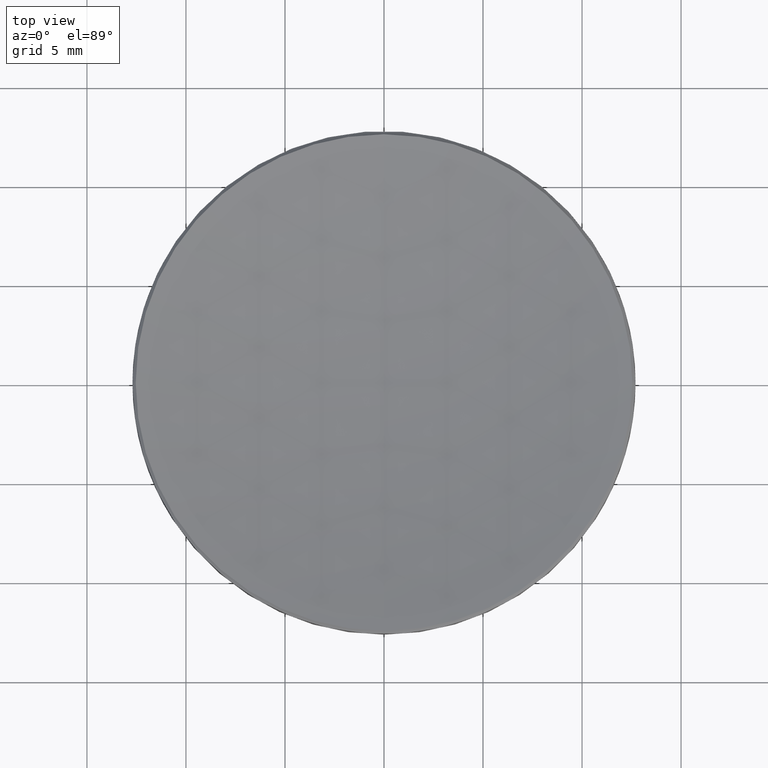
[diagram: clean part render]
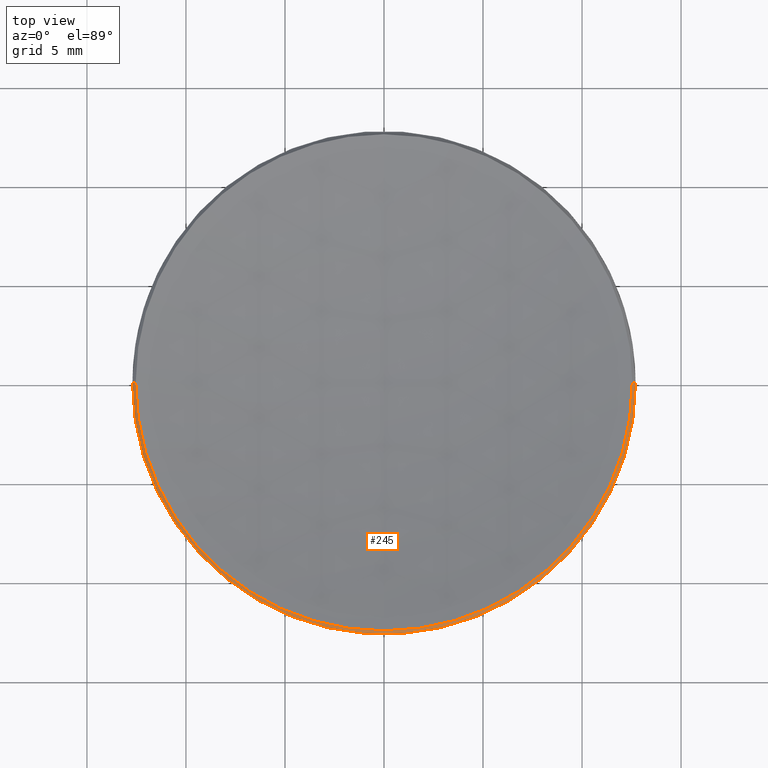
[diagram: same view with one face highlighted and labeled with its STEP entity id]
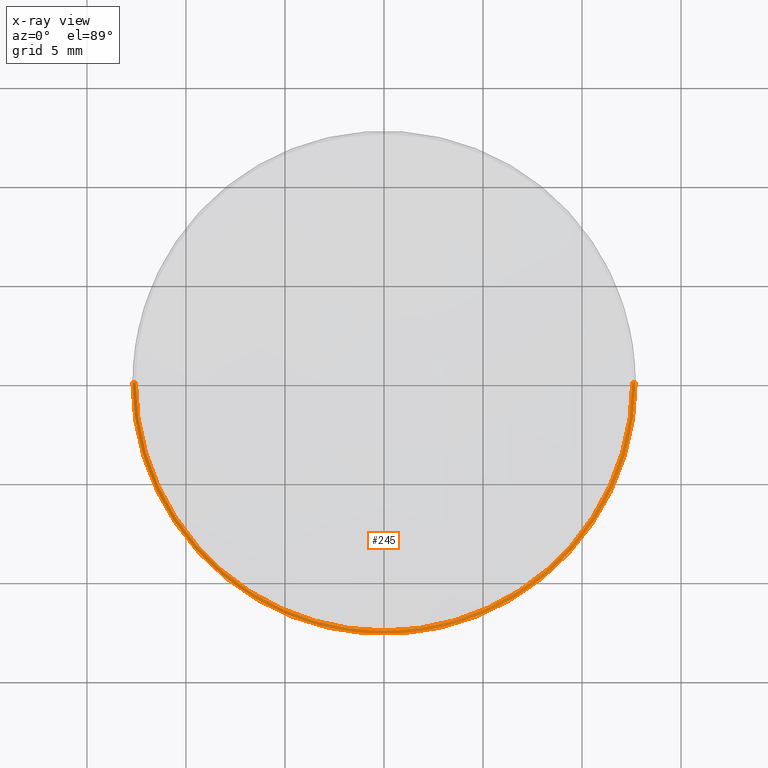
[diagram: x-ray of the same camera — body ghosted, the highlighted face saturated]
A machine part, top view. The second image highlights one B-rep face of the part: STEP entity #245.
The next image is the same camera in x-ray: the body ghosted, the highlighted face saturated — about 0% of this face is hidden behind the body in this view.
In plain terms, the highlighted conical surface has half-angle 45 deg.
Its self-contained STEP definition (entity closure, byte-faithful):
#2 = EDGE_CURVE ( 'NONE', #99, #150, #180, .T. ) ;
#11 = VERTEX_POINT ( 'NONE', #165 ) ;
#12 = LINE ( 'NONE', #211, #276 ) ;
#17 = ORIENTED_EDGE ( 'NONE', *, *, #2, .F. ) ;
#19 = CARTESIAN_POINT ( 'NONE',  ( 0.000000000000000000, 0.000000000000000000, 11.79999999999999716 ) ) ;
#20 = DIRECTION ( 'NONE',  ( -0.000000000000000000, -0.000000000000000000, 1.000000000000000000 ) ) ;
#31 = AXIS2_PLACEMENT_3D ( 'NONE', #19, #138, #223 ) ;
#33 = CARTESIAN_POINT ( 'NONE',  ( -12.69999999999999929, 0.000000000000000000, 11.79999999999999716 ) ) ;
#39 = CARTESIAN_POINT ( 'NONE',  ( 0.000000000000000000, 0.000000000000000000, 11.96196640381658227 ) ) ;
#57 = VERTEX_POINT ( 'NONE', #250 ) ;
#58 = FACE_OUTER_BOUND ( 'NONE', #169, .T. ) ;
#64 = ORIENTED_EDGE ( 'NONE', *, *, #131, .T. ) ;
#68 = CIRCLE ( 'NONE', #220, 12.53803359618341418 ) ;
#77 = CARTESIAN_POINT ( 'NONE',  ( 12.69999999999999929, 1.555301434917138433E-15, 11.79999999999999716 ) ) ;
#84 = DIRECTION ( 'NONE',  ( 0.7071067811865513475, 8.659560562354980929E-17, -0.7071067811865437980 ) ) ;
#87 = VERTEX_POINT ( 'NONE', #266 ) ;
#91 = EDGE_CURVE ( 'NONE', #11, #87, #115, .T. ) ;
#95 = DIRECTION ( 'NONE',  ( -0.7071067811865513475, 0.000000000000000000, -0.7071067811865437980 ) ) ;
#96 = VECTOR ( 'NONE', #84, 1000.000000000000000 ) ;
#99 = VERTEX_POINT ( 'NONE', #77 ) ;
#102 = DIRECTION ( 'NONE',  ( 1.000000000000000000, 0.000000000000000000, 0.000000000000000000 ) ) ;
#104 = ORIENTED_EDGE ( 'NONE', *, *, #179, .F. ) ;
#111 = AXIS2_PLACEMENT_3D ( 'NONE', #112, #203, #229 ) ;
#112 = CARTESIAN_POINT ( 'NONE',  ( 0.000000000000000000, 0.000000000000000000, 11.96196640381658227 ) ) ;
#115 = CIRCLE ( 'NONE', #111, 12.53803359618341418 ) ;
#124 = DIRECTION ( 'NONE',  ( 0.000000000000000000, 0.000000000000000000, -1.000000000000000000 ) ) ;
#128 = AXIS2_PLACEMENT_3D ( 'NONE', #39, #124, #281 ) ;
#131 = EDGE_CURVE ( 'NONE', #57, #150, #12, .T. ) ;
#138 = DIRECTION ( 'NONE',  ( 0.000000000000000000, 0.000000000000000000, -1.000000000000000000 ) ) ;
#150 = VERTEX_POINT ( 'NONE', #33 ) ;
#163 = CONICAL_SURFACE ( 'NONE', #128, 12.53803359618341418, 0.7853981633974536081 ) ;
#165 = CARTESIAN_POINT ( 'NONE',  ( -1.535466271116798629E-15, -12.53803359618340529, 11.96196640381657872 ) ) ;
#169 = EDGE_LOOP ( 'NONE', ( #104, #191, #218, #64, #17 ) ) ;
#170 = EDGE_CURVE ( 'NONE', #57, #11, #68, .T. ) ;
#179 = EDGE_CURVE ( 'NONE', #87, #99, #277, .T. ) ;
#180 = CIRCLE ( 'NONE', #31, 12.69999999999999929 ) ;
#191 = ORIENTED_EDGE ( 'NONE', *, *, #91, .F. ) ;
#203 = DIRECTION ( 'NONE',  ( -0.000000000000000000, -0.000000000000000000, 1.000000000000000000 ) ) ;
#211 = CARTESIAN_POINT ( 'NONE',  ( -12.53803359618341418, 0.000000000000000000, 11.96196640381658227 ) ) ;
#218 = ORIENTED_EDGE ( 'NONE', *, *, #170, .F. ) ;
#220 = AXIS2_PLACEMENT_3D ( 'NONE', #273, #20, #102 ) ;
#223 = DIRECTION ( 'NONE',  ( 1.000000000000000000, 0.000000000000000000, 0.000000000000000000 ) ) ;
#229 = DIRECTION ( 'NONE',  ( 1.000000000000000000, 0.000000000000000000, 0.000000000000000000 ) ) ;
#232 = CARTESIAN_POINT ( 'NONE',  ( 12.53803359618341418, 1.535466271116799418E-15, 11.96196640381658227 ) ) ;
#245 = ADVANCED_FACE ( 'NONE', ( #58 ), #163, .T. ) ;
#250 = CARTESIAN_POINT ( 'NONE',  ( -12.53803359618341418, 0.000000000000000000, 11.96196640381658227 ) ) ;
#266 = CARTESIAN_POINT ( 'NONE',  ( 12.53803359618341418, 1.545383853016968925E-15, 11.96196640381658227 ) ) ;
#273 = CARTESIAN_POINT ( 'NONE',  ( 0.000000000000000000, 0.000000000000000000, 11.96196640381658227 ) ) ;
#276 = VECTOR ( 'NONE', #95, 1000.000000000000000 ) ;
#277 = LINE ( 'NONE', #232, #96 ) ;
#281 = DIRECTION ( 'NONE',  ( -1.000000000000000000, 0.000000000000000000, 0.000000000000000000 ) ) ;